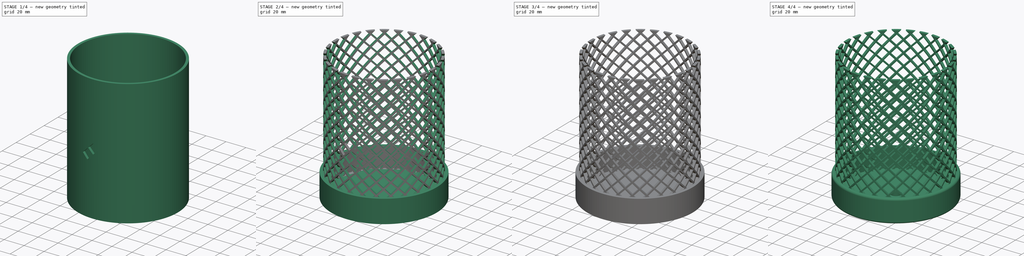
[diagram: build sequence overview — one tinted view per stage of 4, left to right]
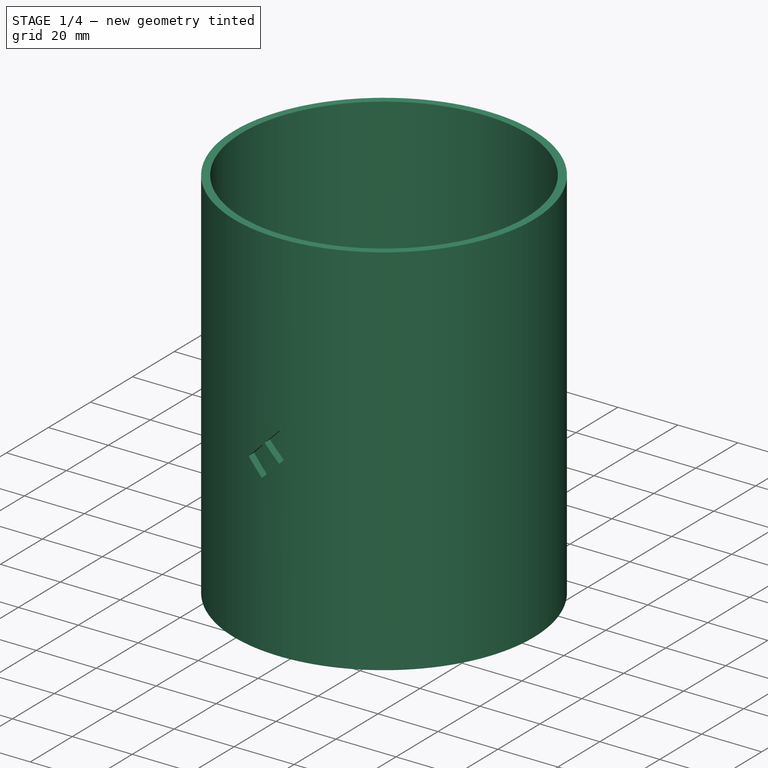
[diagram: stage 1 of 4 — iso view after this stage's code; geometry added in this stage tinted green]
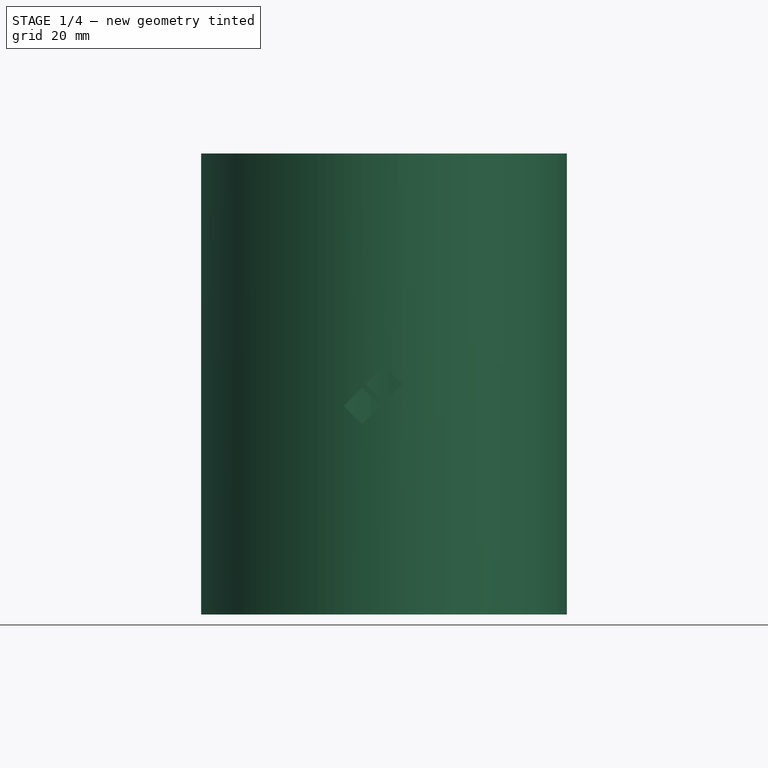
[diagram: stage 1 of 4 — front view after this stage's code; geometry added in this stage tinted green]
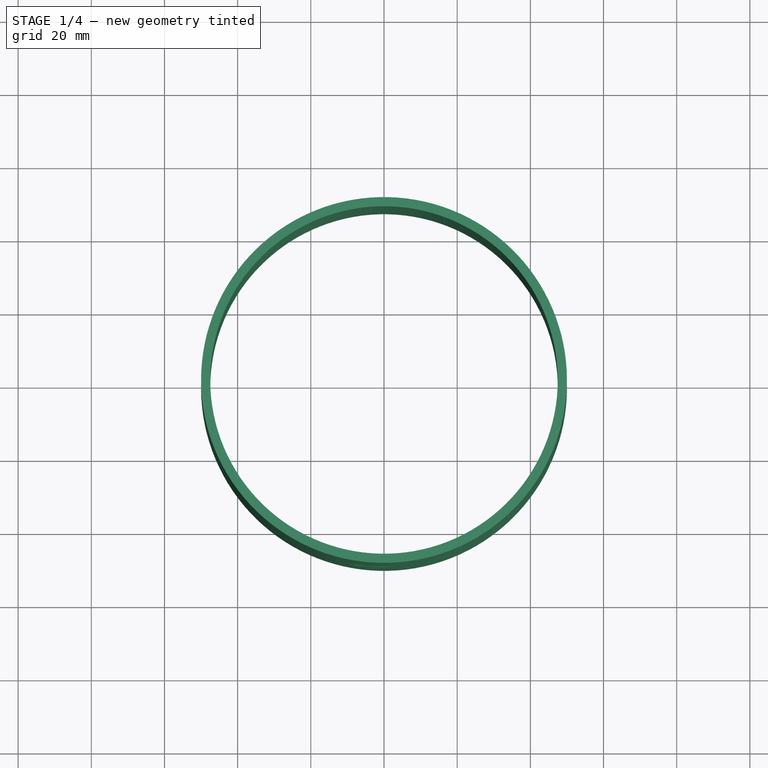
[diagram: stage 1 of 4 — top view after this stage's code; geometry added in this stage tinted green]
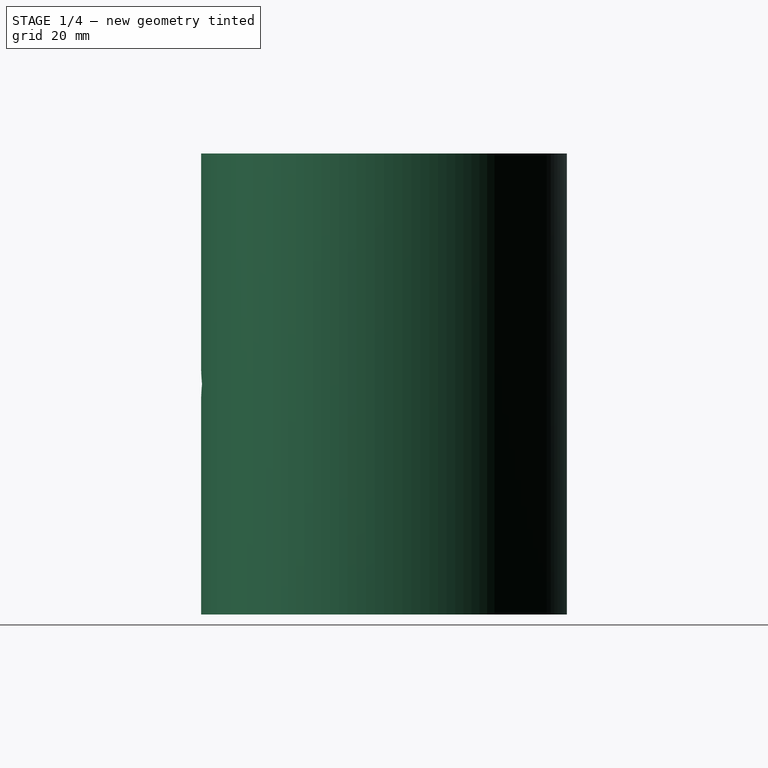
[diagram: stage 1 of 4 — right view after this stage's code; geometry added in this stage tinted green]
FCSTD DOCUMENT  (FreeCAD 1.0R39319 (Git))
Label: Bucket
License: All rights reserved
LicenseURL: https://en.wikipedia.org/wiki/All_rights_reserved
objects: Sketcher::SketchObject×4, PartDesign::Body×3, PartDesign::Revolution×2, PartDesign::Fillet×2, PartDesign::Hole×2, PartDesign::LinearPattern×2, PartDesign::Pad×1, PartDesign::Pocket×1, PartDesign::PolarPattern×1, PartDesign::MultiTransform×1
note: 43 computed .brp shape members not serialized (recipe doc carries the construction recipe); baked Part::Feature solids carry a one-line shape summary decoded from their .brp

FEATURE [PartDesign::Body] Body001  label="TopCover"
  AllowCompound = false
  Group = -> [Sketch001,Revolution001,Fillet001,Hole001]
  Origin = -> Origin001
  Placement = pos=(0,1.59e-14,126) rot=(1,0,0;3.14159rad)
  Tip = -> Hole001
FEATURE [Sketcher::SketchObject] Sketch002
  ArcFitTolerance = 1e-06
  AttachmentSupport = -> [XY_Plane002]
  FullyConstrained = true
  MakeInternals = false
  MapMode = 5
  sketch-geometry (2):
    g0: Circle CenterX=0 CenterY=0 CenterZ=0 NormalX=0 NormalY=0 NormalZ=1 AngleXU=0 Radius=50
    g1: Circle CenterX=0 CenterY=0 CenterZ=0 NormalX=0 NormalY=0 NormalZ=1 AngleXU=0 Radius=47.5
  constraints (4):
    c: Diameter(g0) = 100
    c: Coincident(g0,g-1)
    c: Diameter(g1) = 95
    c: Coincident(g1,g0)
FEATURE [PartDesign::Pad] Pad
  Direction = (0,0,1)
  Length = 126
  Length2 = 10
  Profile = -> Sketch002
  ReferenceAxis = -> Sketch002 [N_Axis]
  Refine = true
  Suppressed = false
  Type = 0
FEATURE [Sketcher::SketchObject] Sketch004
  ArcFitTolerance = 1e-06
  AttachmentOffset = pos=(0,0,50) rot=(0,0,1;0rad)
  AttachmentSupport = -> [XZ_Plane002]
  FullyConstrained = true
  MakeInternals = false
  MapMode = 5
  Placement = pos=(0,-50,1.11e-14) rot=(1,0,0;1.5708rad)
  sketch-geometry (10):
    g0: LineSegment [constr] StartX=0 StartY=0 StartZ=0 EndX=0 EndY=126 EndZ=0
    g1: GeomPoint [constr] X=0 Y=63 Z=0
    g2: LineSegment StartX=0 StartY=68 StartZ=0 EndX=-5 EndY=63 EndZ=0
    g3: LineSegment StartX=-5 StartY=63 StartZ=0 EndX=0 EndY=58 EndZ=0
    g4: LineSegment StartX=0 StartY=58 StartZ=0 EndX=5 EndY=63 EndZ=0
    g5: LineSegment StartX=5 StartY=63 StartZ=0 EndX=0 EndY=68 EndZ=0
    g6: LineSegment StartX=-11 StartY=57 StartZ=0 EndX=-6 EndY=62 EndZ=0
    g7: LineSegment StartX=-6 StartY=62 StartZ=0 EndX=-1 EndY=57 EndZ=0
    g8: LineSegment StartX=-1 StartY=57 StartZ=0 EndX=-6 EndY=52 EndZ=0
    g9: LineSegment StartX=-6 StartY=52 StartZ=0 EndX=-11 EndY=57 EndZ=0
  constraints (28):
    c: Distance(g0) = 126
    c: Coincident(g0,g-1)
    c: PointOnObject(g0,g-2)
    c: Symmetric(g0,g0,g1)
    c: Coincident(g2,g3)
    c: Coincident(g3,g4)
    c: Coincident(g4,g5)
    c: Coincident(g5,g2)
    c: Vertical(g2,g3)
    c: Horizontal(g4,g2)
    c: Perpendicular(g2,g5)
    c: Perpendicular(g4,g5)
    c: PointOnObject(g2,g0)
    c: Horizontal(g1,g4)
    c: DistanceY(g3,g2) = 10
    c: Coincident(g6,g7)
    c: Coincident(g7,g8)
    c: Coincident(g8,g9)
    c: Coincident(g9,g6)
    c: Equal(g3,g7)
    c: Equal(g7,g6)
    c: Vertical(g6,g8)
    c: Horizontal(g7,g6)
    c: Perpendicular(g9,g6)
    c: Perpendicular(g8,g9)
    c: DistanceX(g6,g7) = 10
    c: DistanceY(g7,g3) = 1
    c: DistanceX(g6,g2) = 1
FEATURE [PartDesign::Pocket] Pocket
  BaseFeature = -> Pad
  Direction = (0,1,-2e-16)
  Length = 10
  Length2 = 5
  Midplane = true
  Profile = -> Sketch004
  ReferenceAxis = -> Sketch004 [N_Axis]
  Refine = true
  Suppressed = false
  Type = 0
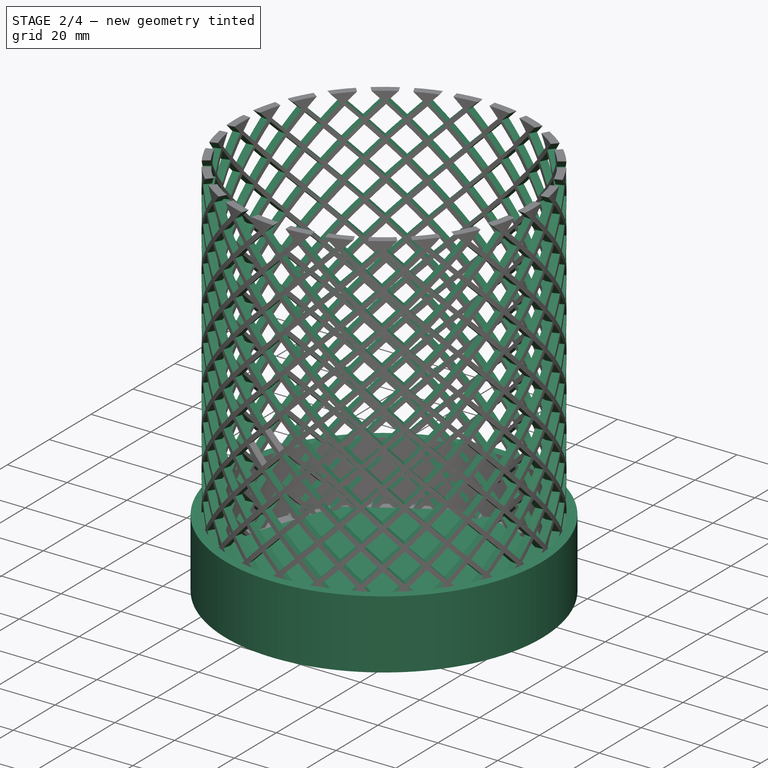
[diagram: stage 2 of 4 — iso view after this stage's code; geometry added in this stage tinted green]
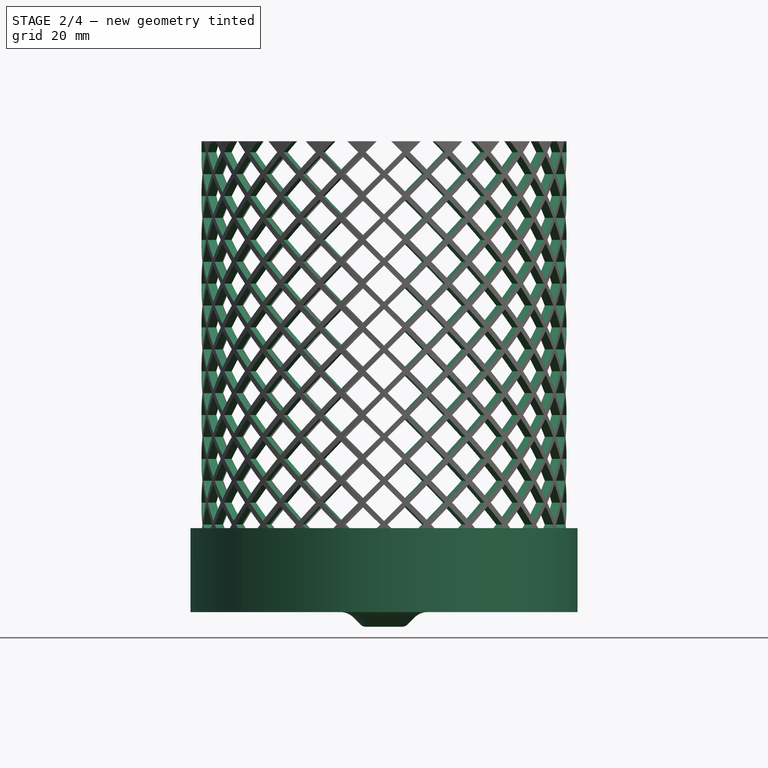
[diagram: stage 2 of 4 — front view after this stage's code; geometry added in this stage tinted green]
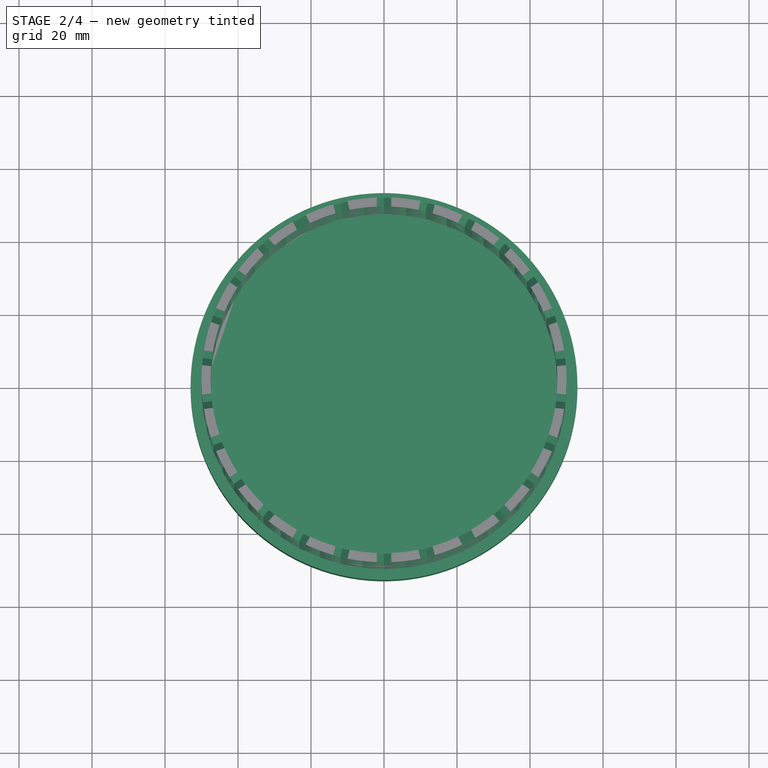
[diagram: stage 2 of 4 — top view after this stage's code; geometry added in this stage tinted green]
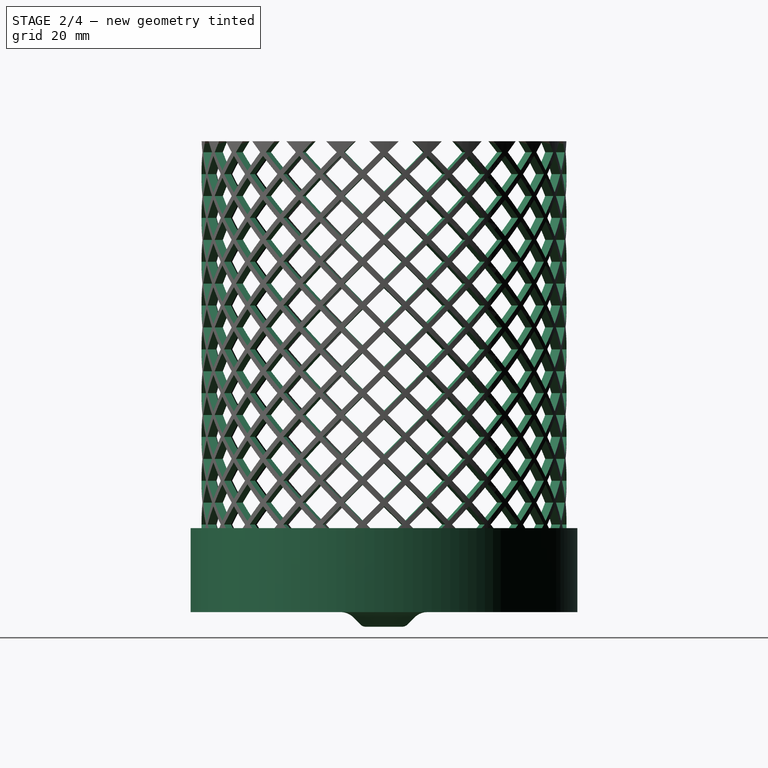
[diagram: stage 2 of 4 — right view after this stage's code; geometry added in this stage tinted green]
FEATURE [PartDesign::Body] Body  label="BottomCover"
  AllowCompound = false
  Group = -> [Sketch,Revolution,Fillet,Hole]
  Origin = -> Origin
  Tip = -> Hole
FEATURE [Sketcher::SketchObject] Sketch001
  ArcFitTolerance = 1e-06
  AttachmentSupport = -> [XZ_Plane001]
  FullyConstrained = true
  MakeInternals = false
  MapMode = 5
  Placement = pos=(0,0,0) rot=(1,0,0;1.5708rad)
  sketch-geometry (13):
    g0: LineSegment StartX=0 StartY=-7 StartZ=0 EndX=5 EndY=-7 EndZ=0
    g1: LineSegment StartX=6.41421 StartY=-6.41421 StartZ=0 EndX=8.36396 EndY=-4.46447 EndZ=0
    g2: LineSegment StartX=11.8995 StartY=-3 StartZ=0 EndX=53 EndY=-3 EndZ=0
    g3: LineSegment StartX=53 StartY=-3 StartZ=0 EndX=53 EndY=0 EndZ=0
    g4: ArcOfCircle CenterX=11.8995 CenterY=-8 CenterZ=0 NormalX=0 NormalY=0 NormalZ=1 AngleXU=0 Radius=5 StartAngle=1.5708 EndAngle=2.35619
    g5: GeomPoint [constr] X=9.82843 Y=-3 Z=0
    g6: ArcOfCircle CenterX=5 CenterY=-5 CenterZ=0 NormalX=0 NormalY=0 NormalZ=1 AngleXU=0 Radius=2 StartAngle=4.71239 EndAngle=5.49779
    g7: GeomPoint [constr] X=5.82843 Y=-7 Z=0
    g8: LineSegment StartX=0 StartY=0 StartZ=0 EndX=0 EndY=-7 EndZ=0
    g9: LineSegment StartX=53 StartY=0 StartZ=0 EndX=53 EndY=20 EndZ=0
    g10: LineSegment StartX=53 StartY=20 StartZ=0 EndX=50 EndY=20 EndZ=0
    g11: LineSegment StartX=50 StartY=20 StartZ=0 EndX=50 EndY=0 EndZ=0
    g12: LineSegment StartX=50 StartY=0 StartZ=0 EndX=0 EndY=0 EndZ=0
  constraints (34):
    c: PointOnObject(g0,g-2)
    c: Horizontal(g0)
    c: DistanceX(g-1,g2) = 53
    c: Coincident(g3,g2)
    c: PointOnObject(g3,g-1)
    c: DistanceY(g3,g3) = 3
    c: Horizontal(g2)
    c: PointOnObject(g5,g1)
    c: PointOnObject(g5,g2)
    c: Tangent(g1,g4) = 1.5708
    c: Tangent(g2,g4) = 1.5708
    c: Radius(g4) = 5
    c: PointOnObject(g7,g0)
    c: PointOnObject(g7,g1)
    c: Tangent(g0,g6) = -1.5708
    c: Tangent(g1,g6) = -1.5708
    c: Radius(g6) = 2
    c: Angle(g-2,g1) = 2.35619
    c: DistanceX(g0,g0) = 5
    c: Vertical(g3)
    c: Coincident(g8,g0)
    c: Distance(g3,g0) = 7
    c: Coincident(g9,g3)
    c: Vertical(g9)
    c: DistanceY(g9,g9) = 20
    c: Distance(g10) = 3
    c: Coincident(g10,g9)
    c: Horizontal(g10)
    c: Coincident(g11,g10)
    c: PointOnObject(g11,g-1)
    c: Vertical(g11)
    c: Coincident(g12,g11)
    c: Coincident(g12,g8)
    c: Coincident(g8,g-1)
FEATURE [PartDesign::Revolution] Revolution001
  Angle = 360
  Angle2 = 60
  Axis = (0,2e-16,1)
  Base = (0,0,0)
  Placement = pos=(0,0,0) rot=(1,0,0;1.5708rad)
  Profile = -> Sketch001
  ReferenceAxis = -> Sketch001 [V_Axis]
  Refine = true
  Reversed = true
  Suppressed = false
  Type = 0
FEATURE [PartDesign::LinearPattern] LinearPattern
  Direction = -> Z_Axis002
  Length = 60
  Mode = 1
  Occurrences = 6
  Offset = 12
  Refine = true
  Suppressed = false
  TransformMode = 0
FEATURE [PartDesign::PolarPattern] PolarPattern
  Angle = 360
  Axis = -> Z_Axis002
  Mode = 0
  Occurrences = 26
  Offset = 120
  Refine = true
  Suppressed = false
  TransformMode = 0
FEATURE [PartDesign::LinearPattern] LinearPattern001
  Direction = -> Z_Axis002
  Length = 72
  Mode = 1
  Occurrences = 2
  Offset = 72
  Refine = true
  Reversed = true
  Suppressed = false
  TransformMode = 0
FEATURE [PartDesign::MultiTransform] MultiTransform
  BaseFeature = -> Pocket
  Originals = -> [Pocket]
  Refine = true
  Suppressed = false
  TransformMode = 0
  Transformations = -> [LinearPattern,PolarPattern,LinearPattern001]
FEATURE [PartDesign::Body] Body002  label="Mesh"
  AllowCompound = false
  Group = -> [Sketch002,Pad,Sketch004,Pocket,MultiTransform,LinearPattern,PolarPattern,LinearPattern001]
  Origin = -> Origin002
  Tip = -> MultiTransform
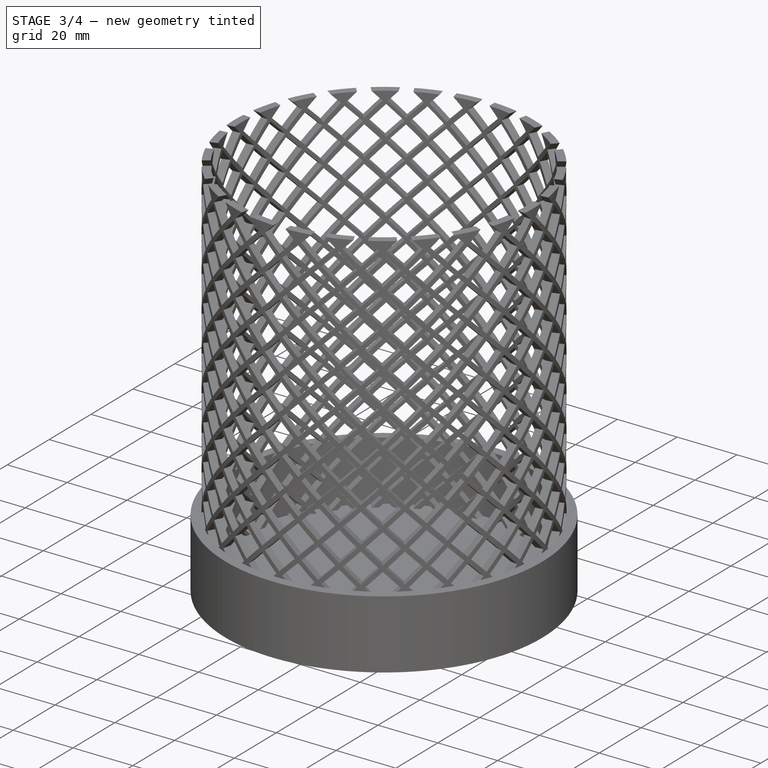
[diagram: stage 3 of 4 — iso view after this stage's code; geometry added in this stage tinted green]
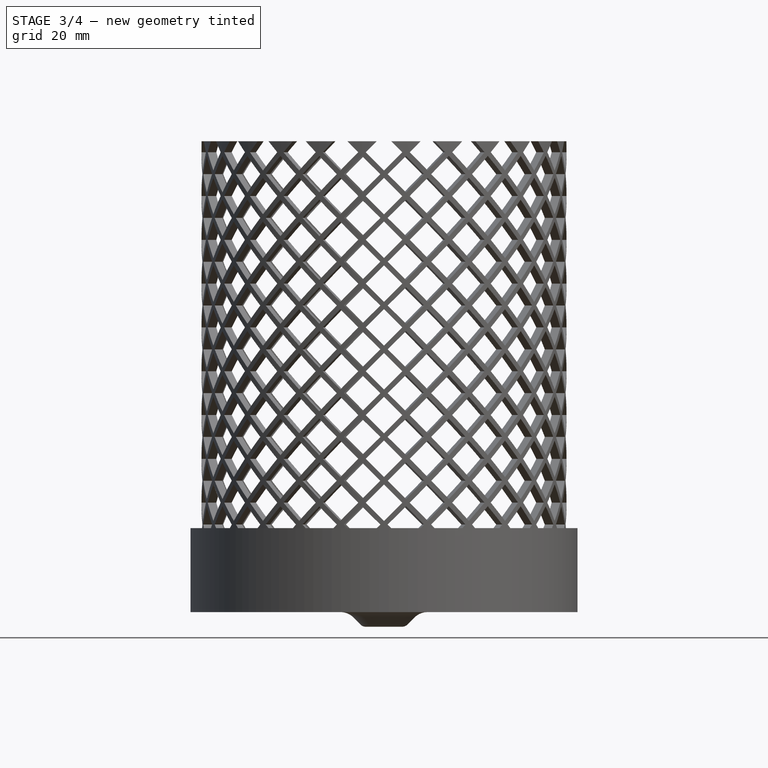
[diagram: stage 3 of 4 — front view after this stage's code; geometry added in this stage tinted green]
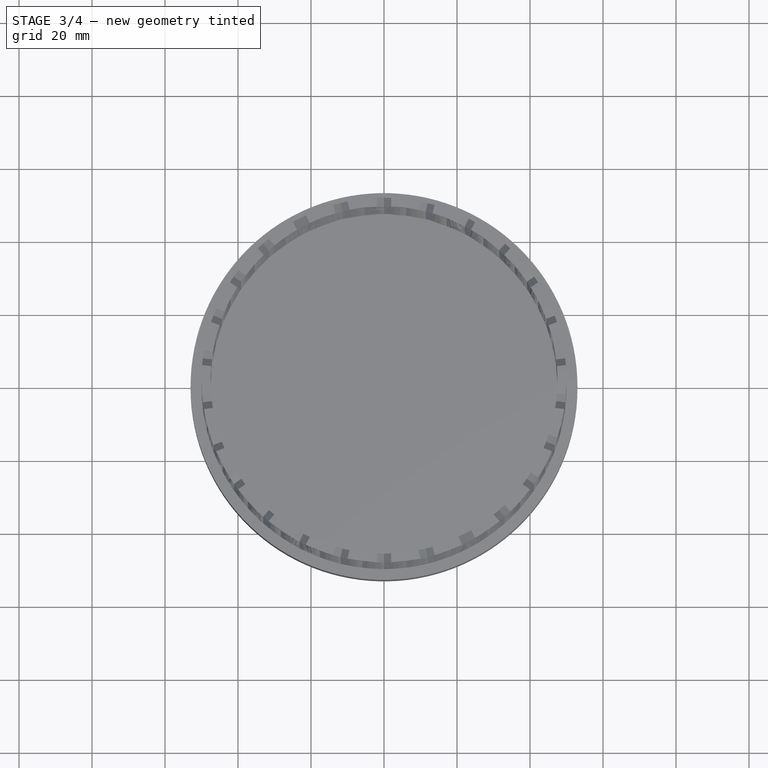
[diagram: stage 3 of 4 — top view after this stage's code; geometry added in this stage tinted green]
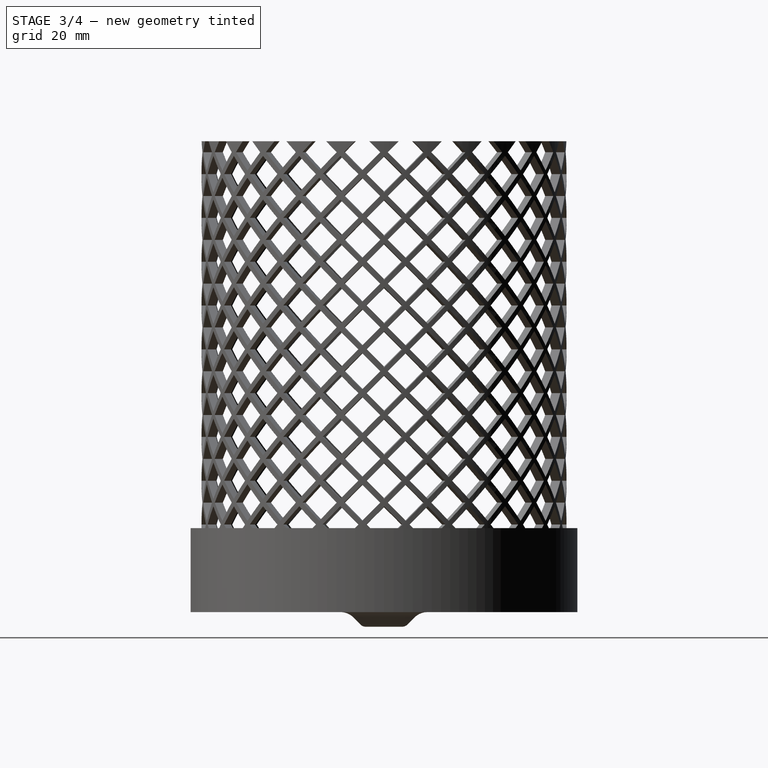
[diagram: stage 3 of 4 — right view after this stage's code; geometry added in this stage tinted green]
FEATURE [Sketcher::SketchObject] Sketch
  ArcFitTolerance = 1e-06
  AttachmentSupport = -> [XZ_Plane]
  FullyConstrained = true
  MakeInternals = false
  MapMode = 5
  Placement = pos=(0,0,0) rot=(1,0,0;1.5708rad)
  sketch-geometry (13):
    g0: LineSegment StartX=0 StartY=-7 StartZ=0 EndX=5 EndY=-7 EndZ=0
    g1: LineSegment StartX=6.41421 StartY=-6.41421 StartZ=0 EndX=8.36396 EndY=-4.46447 EndZ=0
    g2: LineSegment StartX=11.8995 StartY=-3 StartZ=0 EndX=53 EndY=-3 EndZ=0
    g3: LineSegment StartX=53 StartY=-3 StartZ=0 EndX=53 EndY=0 EndZ=0
    g4: ArcOfCircle CenterX=11.8995 CenterY=-8 CenterZ=0 NormalX=0 NormalY=0 NormalZ=1 AngleXU=0 Radius=5 StartAngle=1.5708 EndAngle=2.35619
    g5: GeomPoint [constr] X=9.82843 Y=-3 Z=0
    g6: ArcOfCircle CenterX=5 CenterY=-5 CenterZ=0 NormalX=0 NormalY=0 NormalZ=1 AngleXU=0 Radius=2 StartAngle=4.71239 EndAngle=5.49779
    g7: GeomPoint [constr] X=5.82843 Y=-7 Z=0
    g8: LineSegment StartX=0 StartY=0 StartZ=0 EndX=0 EndY=-7 EndZ=0
    g9: LineSegment StartX=53 StartY=0 StartZ=0 EndX=53 EndY=20 EndZ=0
    g10: LineSegment StartX=53 StartY=20 StartZ=0 EndX=50 EndY=20 EndZ=0
    g11: LineSegment StartX=50 StartY=20 StartZ=0 EndX=50 EndY=0 EndZ=0
    g12: LineSegment StartX=50 StartY=0 StartZ=0 EndX=0 EndY=0 EndZ=0
  constraints (34):
    c: PointOnObject(g0,g-2)
    c: Horizontal(g0)
    c: DistanceX(g-1,g2) = 53
    c: Coincident(g3,g2)
    c: PointOnObject(g3,g-1)
    c: DistanceY(g3,g3) = 3
    c: Horizontal(g2)
    c: PointOnObject(g5,g1)
    c: PointOnObject(g5,g2)
    c: Tangent(g1,g4) = 1.5708
    c: Tangent(g2,g4) = 1.5708
    c: Radius(g4) = 5
    c: PointOnObject(g7,g0)
    c: PointOnObject(g7,g1)
    c: Tangent(g0,g6) = -1.5708
    c: Tangent(g1,g6) = -1.5708
    c: Radius(g6) = 2
    c: Angle(g-2,g1) = 2.35619
    c: DistanceX(g0,g0) = 5
    c: Vertical(g3)
    c: Coincident(g8,g0)
    c: Distance(g3,g0) = 7
    c: Coincident(g9,g3)
    c: Vertical(g9)
    c: DistanceY(g9,g9) = 20
    c: Distance(g10) = 3
    c: Coincident(g10,g9)
    c: Horizontal(g10)
    c: Coincident(g11,g10)
    c: PointOnObject(g11,g-1)
    c: Vertical(g11)
    c: Coincident(g12,g11)
    c: Coincident(g12,g8)
    c: Coincident(g8,g-1)
FEATURE [PartDesign::Revolution] Revolution
  Angle = 360
  Angle2 = 60
  Axis = (0,2e-16,1)
  Base = (0,0,0)
  Placement = pos=(0,0,0) rot=(1,0,0;1.5708rad)
  Profile = -> Sketch
  ReferenceAxis = -> Sketch [V_Axis]
  Refine = true
  Reversed = true
  Suppressed = false
  Type = 0
FEATURE [PartDesign::Fillet] Fillet001
  Base = -> Revolution001 [Edge1,Edge6]
  BaseFeature = -> Revolution001
  Placement = pos=(0,0,0) rot=(1,0,0;1.5708rad)
  Radius = 2
  Refine = true
  SupportTransform = false
  Suppressed = false
  UseAllEdges = false
FEATURE [PartDesign::Hole] Hole001
  BaseFeature = -> Fillet001
  CustomThreadClearance = 0
  Depth = 307.234
  DepthType = 1
  Diameter = 10
  DrillForDepth = false
  DrillPoint = 1
  DrillPointAngle = 118
  HoleCutCountersinkAngle = 90
  HoleCutCustomValues = false
  HoleCutDepth = 0
  HoleCutDiameter = 6.1
  HoleCutType = 0
  ModelThread = false
  Placement = pos=(0,0,0) rot=(1,0,0;1.5708rad)
  Profile = -> Fillet001 [Face11]
  Refine = true
  Suppressed = false
  Tapered = false
  TaperedAngle = 90
  ThreadClass = 0
  ThreadDepth = 307.234
  ThreadDepthType = 0
  ThreadDirection = 0
  ThreadFit = 0
  ThreadSize = 0
  ThreadType = 0
  Threaded = false
  UseCustomThreadClearance = false
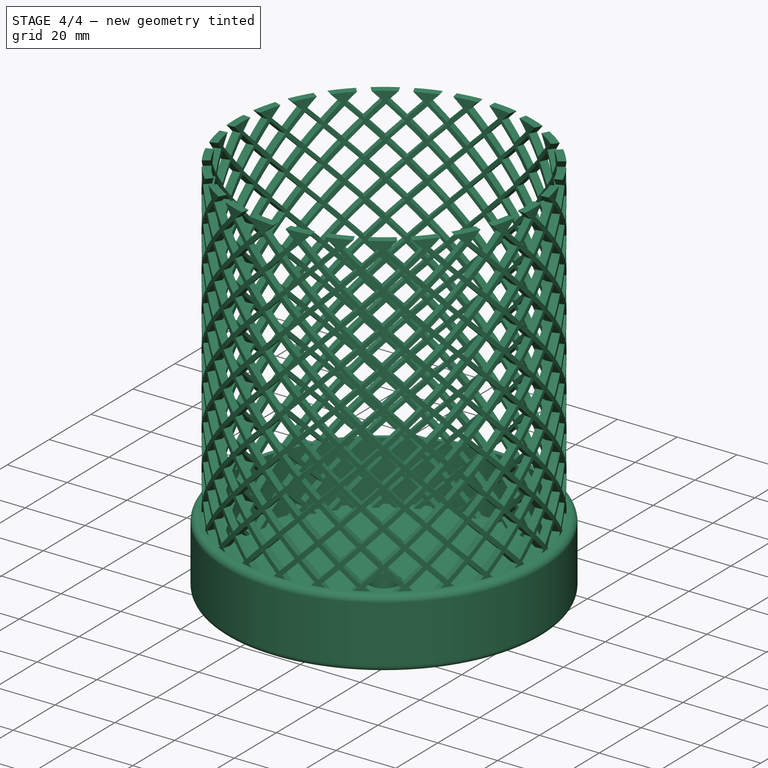
[diagram: stage 4 of 4 — iso view after this stage's code; geometry added in this stage tinted green]
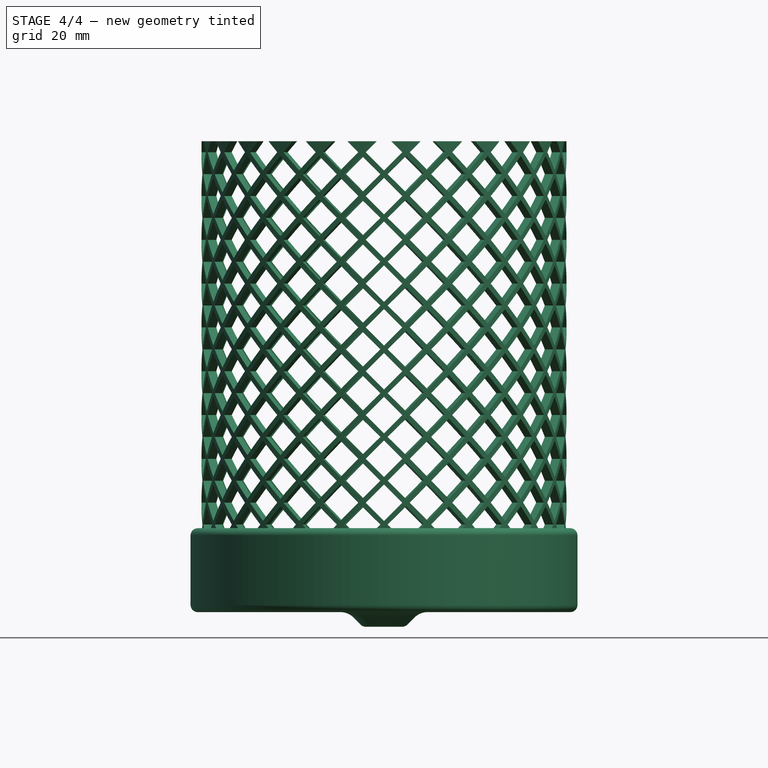
[diagram: stage 4 of 4 — front view after this stage's code; geometry added in this stage tinted green]
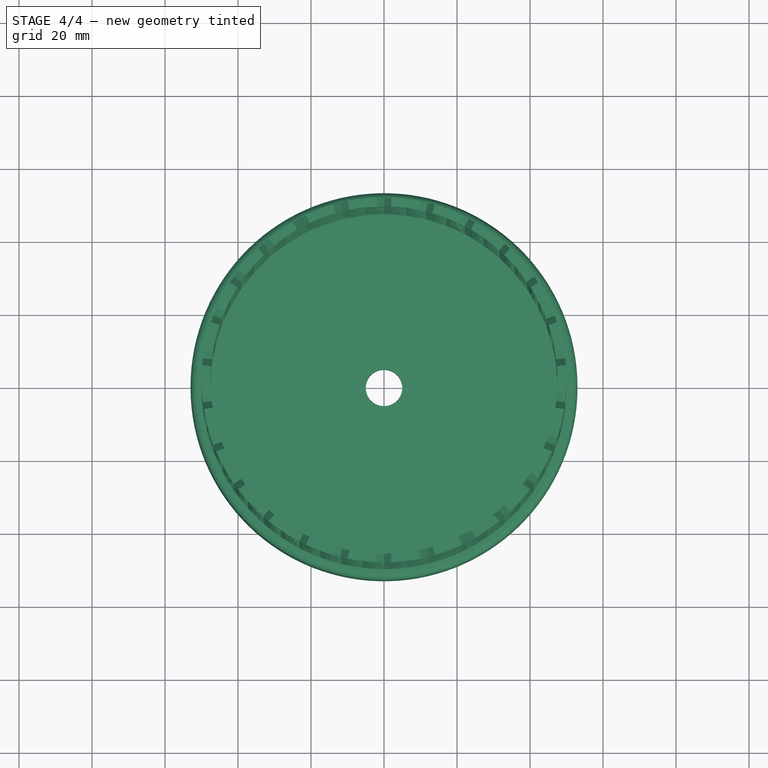
[diagram: stage 4 of 4 — top view after this stage's code; geometry added in this stage tinted green]
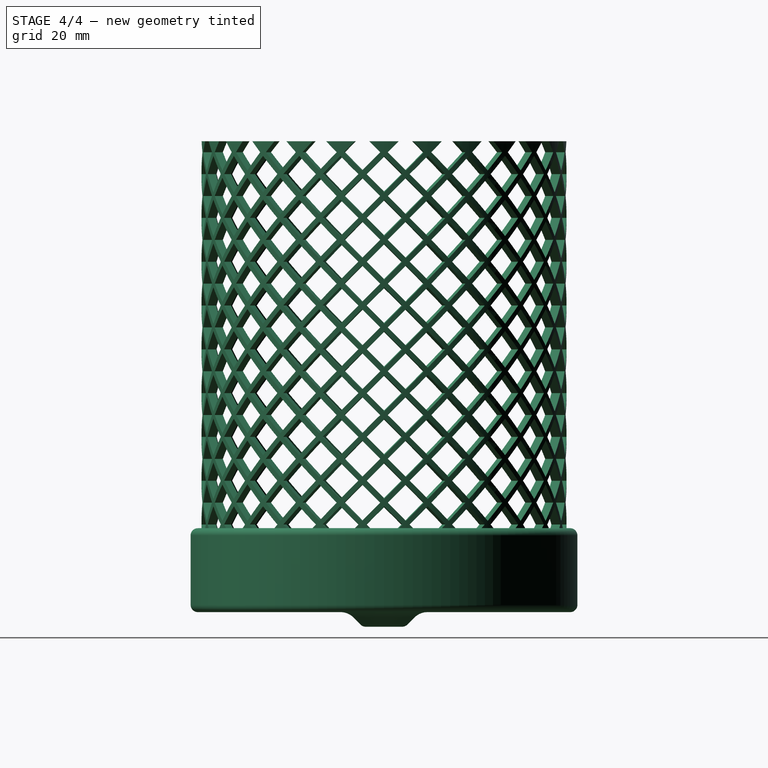
[diagram: stage 4 of 4 — right view after this stage's code; geometry added in this stage tinted green]
FEATURE [PartDesign::Fillet] Fillet
  Base = -> Revolution [Edge1,Edge6]
  BaseFeature = -> Revolution
  Placement = pos=(0,0,0) rot=(1,0,0;1.5708rad)
  Radius = 2
  Refine = true
  SupportTransform = false
  Suppressed = false
  UseAllEdges = false
FEATURE [PartDesign::Hole] Hole
  BaseFeature = -> Fillet
  CustomThreadClearance = 0
  Depth = 307.234
  DepthType = 1
  Diameter = 10
  DrillForDepth = false
  DrillPoint = 1
  DrillPointAngle = 118
  HoleCutCountersinkAngle = 90
  HoleCutCustomValues = false
  HoleCutDepth = 0
  HoleCutDiameter = 6.1
  HoleCutType = 0
  ModelThread = false
  Placement = pos=(0,0,0) rot=(1,0,0;1.5708rad)
  Profile = -> Fillet [Face11]
  Refine = true
  Suppressed = false
  Tapered = false
  TaperedAngle = 90
  ThreadClass = 0
  ThreadDepth = 307.234
  ThreadDepthType = 0
  ThreadDirection = 0
  ThreadFit = 0
  ThreadSize = 0
  ThreadType = 0
  Threaded = false
  UseCustomThreadClearance = false
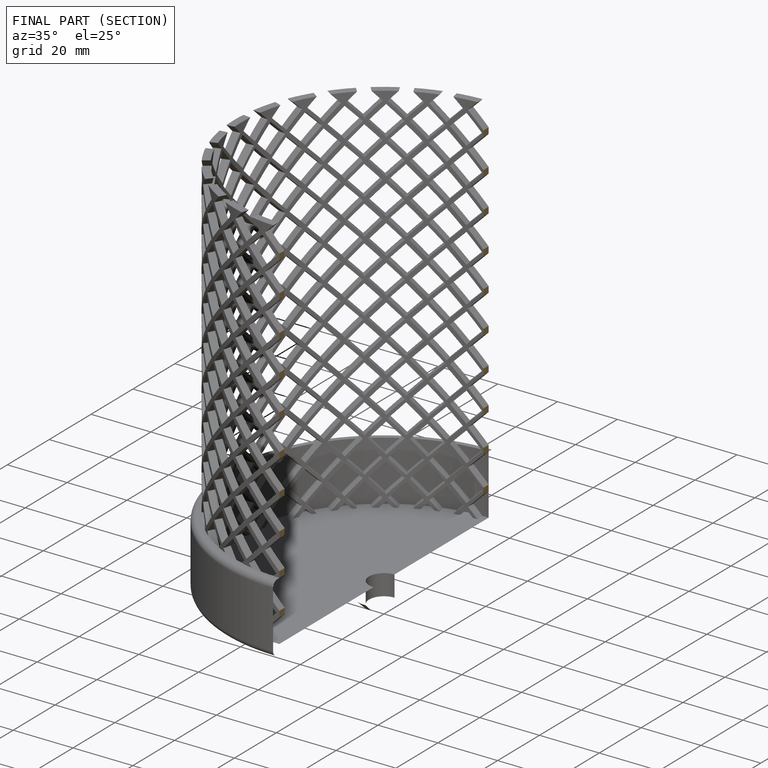
[diagram: finished part — half-section view (interior)]
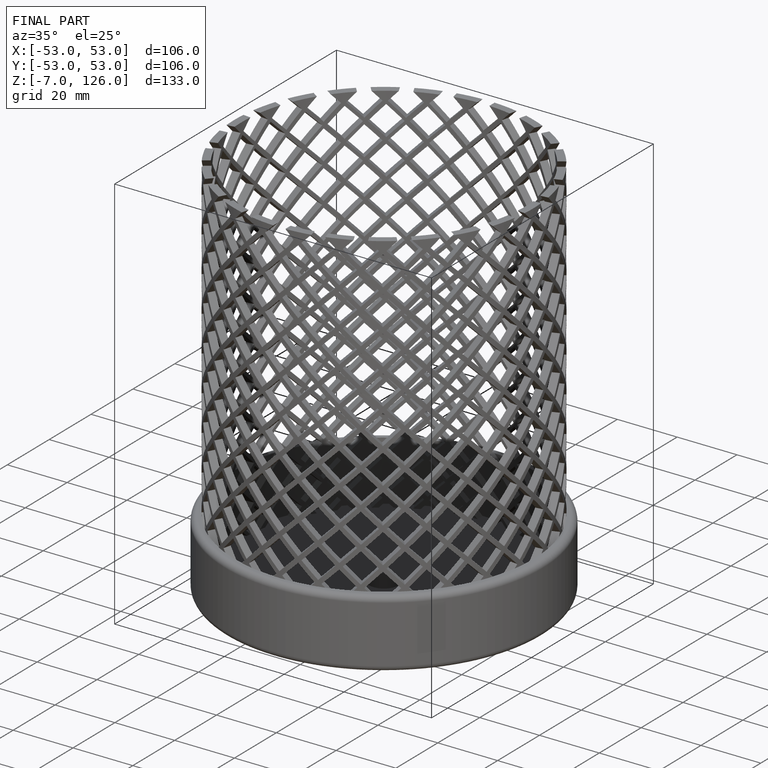
[diagram: finished part — iso view with bounding-box wireframe]
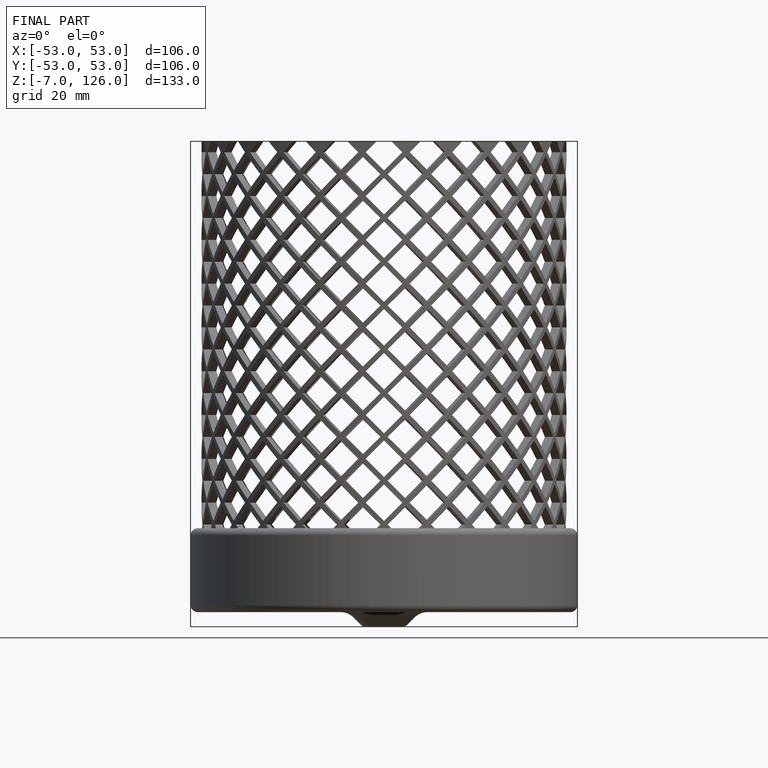
[diagram: finished part — front view with bounding-box wireframe]
